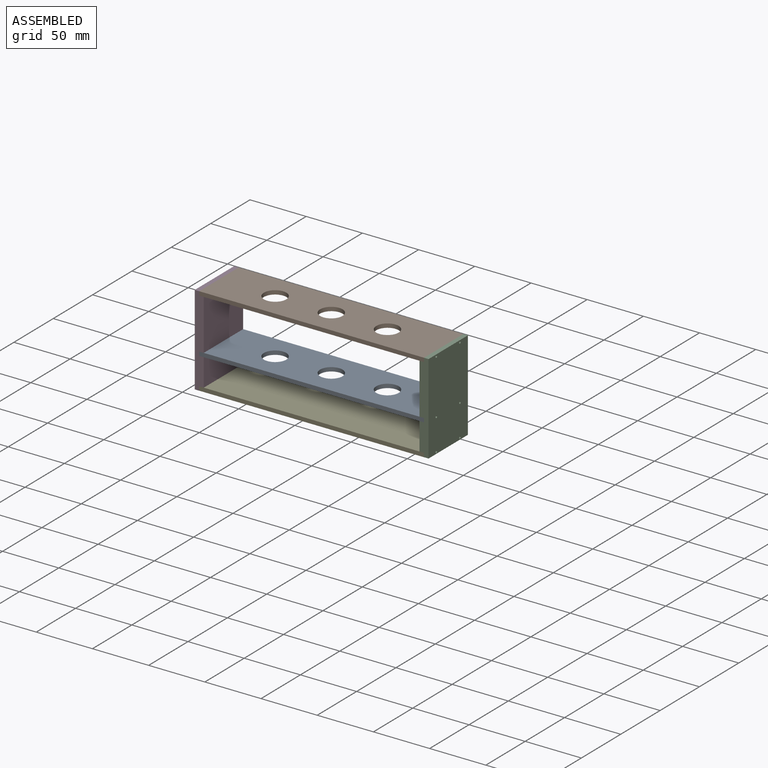
[diagram: assembled view]
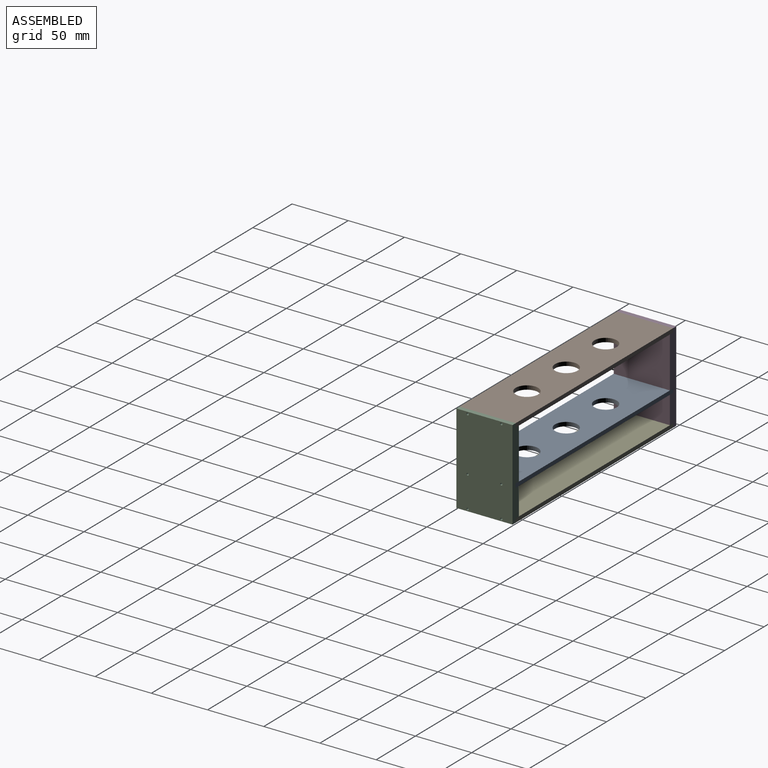
[diagram: assembled view, second angle]
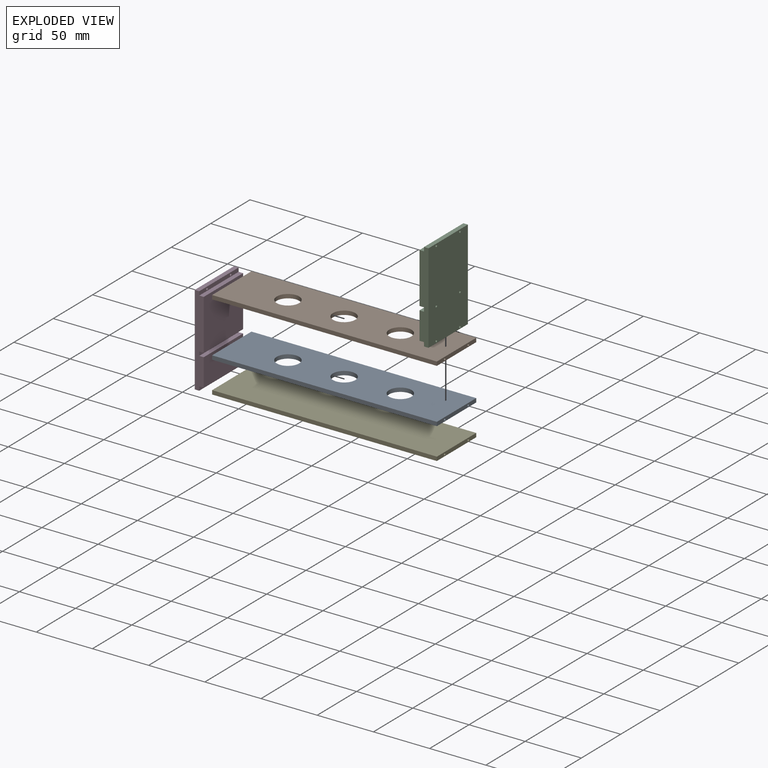
[diagram: exploded view]
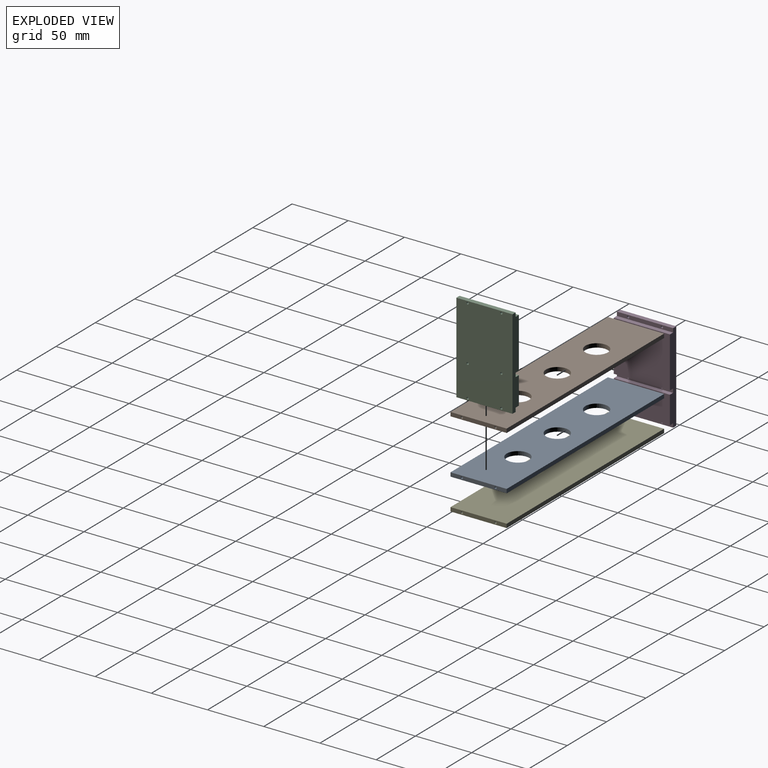
[diagram: exploded view, second angle]
ASSEMBLY  parts=5 mates=4
PART A: 17 faces, bbox 200x50x3.5 mm
  f0: plane 200x3.5mm, normal (0,-1,0), area 700mm2, adj f1,f3,f4,f5
  f1: plane 50x3.5mm, normal (1,0,0), area 168.7mm2, adj f0,f2,f4,f5,f9,f11
  f2: plane 200x3.5mm, normal (0,1,0), area 700mm2, adj f1,f3,f4,f5
  f3: plane 50x3.5mm, normal (-1,0,0), area 168.7mm2, adj f0,f2,f4,f5,f13,f15
  f4: plane 200x50mm, normal (0,0,1), area 9057.5mm2, adj f0,f1,f2,f3,f6,f7,f8
  f5: plane 200x50mm, normal (0,0,-1), area 9057.5mm2, adj f0,f1,f2,f3,f6,f7,f8
  f6: cylinder r=10mm len=20mm, axis (0,0,1), area 219.9mm2, adj f4,f5
  f7: cylinder r=10mm len=20mm, axis (0,0,1), area 219.9mm2, adj f4,f5
  f8: cylinder r=10mm len=20mm, axis (0,0,1), area 219.9mm2, adj f4,f5
  f9: cylinder r=1mm len=15mm, axis (1,0,0), area 94.2mm2, adj f1,f10
  f10: plane 2x2mm, normal (1,0,0), area 3.1mm2, adj f9
  f11: cylinder r=1mm len=15mm, axis (1,0,0), area 94.2mm2, adj f1,f12
  f12: plane 2x2mm, normal (1,0,0), area 3.1mm2, adj f11
  f13: cylinder r=1mm len=15mm, axis (-1,0,0), area 94.2mm2, adj f3,f14
  f14: plane 2x2mm, normal (-1,0,0), area 3.1mm2, adj f13
  f15: cylinder r=1mm len=15mm, axis (-1,0,0), area 94.2mm2, adj f3,f16
  f16: plane 2x2mm, normal (-1,0,0), area 3.1mm2, adj f15
PART B: same geometry as A
PART C: 20 faces, bbox 8x50x80 mm
  f0: plane 50x4mm, normal (0,0,-1), area 200mm2, adj f4,f5,f6,f11
  f1: plane 50x4mm, normal (0,0,1), area 200mm2, adj f4,f5,f6,f12
  f2: plane 50x45mm, normal (1,0,0), area 2250mm2, adj f4,f5,f9,f13
  f3: plane 50x24.5mm, normal (1,0,0), area 1225mm2, adj f4,f5,f8,f10
  f4: plane 80x8mm, normal (0,1,0), area 598mm2, adj f0,f1,f2,f3,f6,f7,f8,f9
  f5: plane 80x8mm, normal (0,-1,0), area 598mm2, adj f0,f1,f2,f3,f6,f7,f8,f9
  f6: plane 80x50mm, normal (-1,0,0), area 3981.2mm2, adj f0,f1,f4,f5,f14,f15,f16,f17
  f7: plane 50x3.5mm, normal (1,0,0), area 168.7mm2, adj f4,f5,f8,f9,f16,f17
  f8: plane 50x4mm, normal (0,0,1), area 200mm2, adj f3,f4,f5,f7
  f9: plane 50x4mm, normal (0,0,-1), area 200mm2, adj f2,f4,f5,f7
  f10: plane 50x4mm, normal (0,0,-1), area 200mm2, adj f3,f4,f5,f11
  f11: plane 50x3.5mm, normal (1,0,0), area 168.7mm2, adj f0,f4,f5,f10,f18,f19
  f12: plane 50x3.5mm, normal (1,0,0), area 168.7mm2, adj f1,f4,f5,f13,f14,f15
  f13: plane 50x4mm, normal (0,0,1), area 200mm2, adj f2,f4,f5,f12
  f14: cylinder r=1mm len=4mm, axis (1,0,0), area 25.1mm2, adj f6,f12
  f15: cylinder r=1mm len=4mm, axis (1,0,0), area 25.1mm2, adj f6,f12
  f16: cylinder r=1mm len=4mm, axis (1,0,0), area 25.1mm2, adj f6,f7
  f17: cylinder r=1mm len=4mm, axis (1,0,0), area 25.1mm2, adj f6,f7
  f18: cylinder r=1mm len=4mm, axis (1,0,0), area 25.1mm2, adj f6,f11
  f19: cylinder r=1mm len=4mm, axis (1,0,0), area 25.1mm2, adj f6,f11
PART D: same geometry as C
PART E: 14 faces, bbox 200x50x3.5 mm
  f0: plane 200x3.5mm, normal (0,-1,0), area 700mm2, adj f1,f3,f4,f5
  f1: plane 50x3.5mm, normal (1,0,0), area 168.7mm2, adj f0,f2,f4,f5,f6,f8
  f2: plane 200x3.5mm, normal (0,1,0), area 700mm2, adj f1,f3,f4,f5
  f3: plane 50x3.5mm, normal (-1,0,0), area 168.7mm2, adj f0,f2,f4,f5,f10,f12
  f4: plane 200x50mm, normal (0,0,1), area 10000mm2, adj f0,f1,f2,f3
  f5: plane 200x50mm, normal (0,0,-1), area 10000mm2, adj f0,f1,f2,f3
  f6: cylinder r=1mm len=15mm, axis (1,0,0), area 94.2mm2, adj f1,f7
  f7: plane 2x2mm, normal (1,0,0), area 3.1mm2, adj f6
  f8: cylinder r=1mm len=15mm, axis (1,0,0), area 94.2mm2, adj f1,f9
  f9: plane 2x2mm, normal (1,0,0), area 3.1mm2, adj f8
  f10: cylinder r=1mm len=15mm, axis (-1,0,0), area 94.2mm2, adj f3,f11
  f11: plane 2x2mm, normal (-1,0,0), area 3.1mm2, adj f10
  f12: cylinder r=1mm len=15mm, axis (-1,0,0), area 94.2mm2, adj f3,f13
  f13: plane 2x2mm, normal (-1,0,0), area 3.1mm2, adj f12
PLACE A t=(62.81,-21.94,-4.56)mm
PLACE B t=(62.81,-21.94,43.94)mm
PLACE C rot(axis=(0,0,-1),180deg) t=(162.81,-21.94,5.69)mm
PLACE D t=(-37.19,-21.94,5.69)mm
PLACE E t=(62.81,-21.94,-32.56)mm
MATE planar B.f3 <-> D.f12  axis (-1,0,0) through (-37.19,-21.94,43.94)mm
MATE planar C.f10 <-> E.f4  axis (0,0,-1) through (160.81,-21.94,-30.81)mm
MATE fastened A.f3 <-> D.f7  axis (-1,0,0) through (-37.19,-21.94,-4.56)mm
MATE planar E.f3 <-> D.f11  axis (-1,0,0) through (-37.19,-21.94,-32.56)mm
